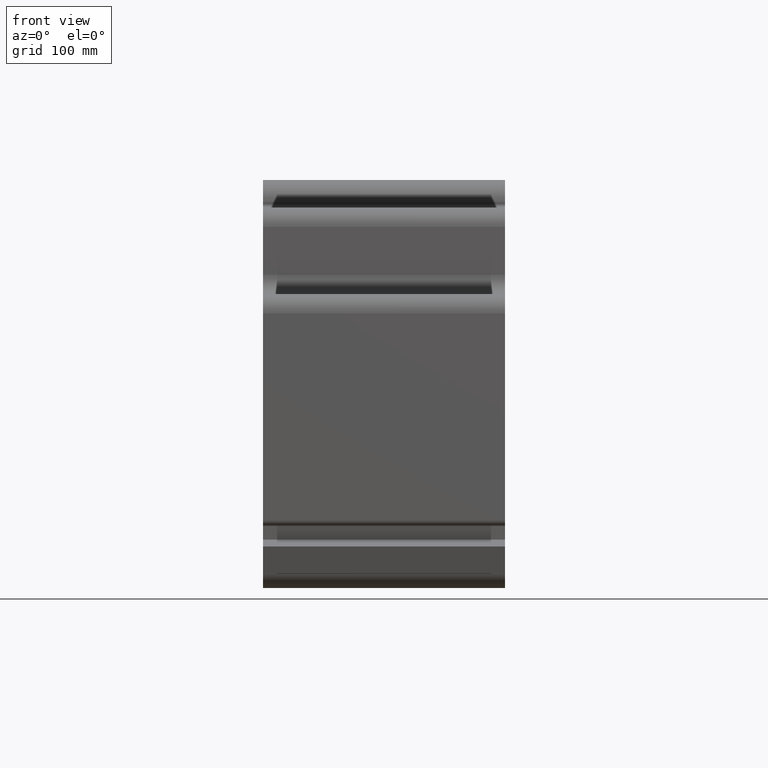
[diagram: clean part render]
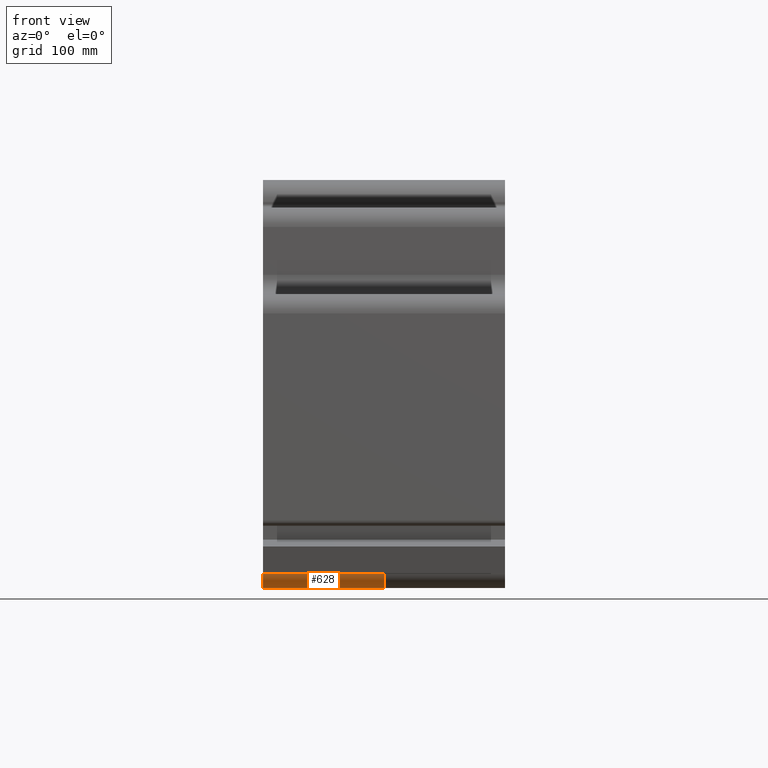
[diagram: same view with one face highlighted and labeled with its STEP entity id]
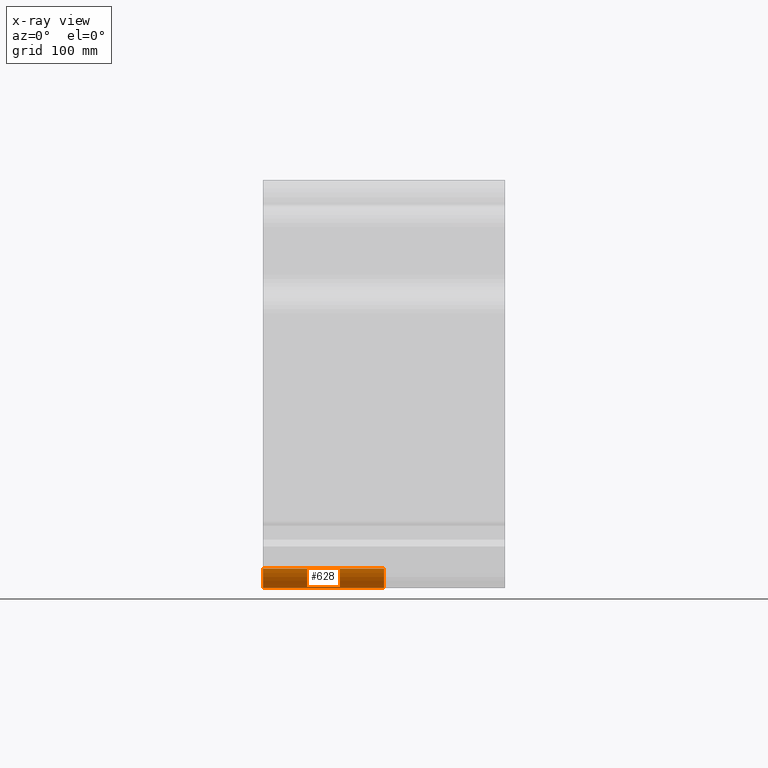
[diagram: x-ray of the same camera — body ghosted, the highlighted face saturated]
A machine part, front view. The second image highlights one B-rep face of the part: STEP entity #628.
The next image is the same camera in x-ray: the body ghosted, the highlighted face saturated — about 0% of this face is hidden behind the body in this view.
In plain terms, the highlighted cylindrical surface (edge-blend (fillet) strip) has radius 28 mm, axis along (1, 0, 0).
Its self-contained STEP definition (entity closure, byte-faithful):
#570=CARTESIAN_POINT('',(175.00000000000028,-529.19999999999982,-50.000000000000099));
#571=VERTEX_POINT('',#570);
#578=CARTESIAN_POINT('',(0.0,-529.19999999999982,-50.000000000000099));
#579=VERTEX_POINT('',#578);
#580=CARTESIAN_POINT('',(0.0,-529.19999999999982,-50.000000000000099));
#581=DIRECTION('',(1.0,0.0,0.0));
#582=VECTOR('',#581,175.00000000000028);
#583=LINE('',#580,#582);
#584=EDGE_CURVE('',#579,#571,#583,.T.);
#596=CARTESIAN_POINT('',(0.0,-529.19999999999982,-21.999999999999972));
#597=DIRECTION('',(1.0,0.0,0.0));
#598=DIRECTION('',(0.0,-0.707106781186546,-0.707106781186549));
#599=AXIS2_PLACEMENT_3D('',#596,#597,#598);
#600=CYLINDRICAL_SURFACE('',#599,28.000000000000124);
#601=CARTESIAN_POINT('',(175.00000000000028,-557.20000000000005,-22.000000000000028));
#602=VERTEX_POINT('',#601);
#603=CARTESIAN_POINT('',(175.00000000000028,-529.19999999999982,-21.999999999999972));
#604=DIRECTION('',(-1.0,0.0,0.0));
#605=DIRECTION('',(0.0,-0.707106781186546,-0.707106781186549));
#606=AXIS2_PLACEMENT_3D('',#603,#604,#605);
#607=CIRCLE('',#606,28.000000000000124);
#608=EDGE_CURVE('',#571,#602,#607,.T.);
#609=ORIENTED_EDGE('',*,*,#608,.T.);
#610=CARTESIAN_POINT('',(0.0,-557.20000000000005,-22.000000000000028));
#611=VERTEX_POINT('',#610);
#612=CARTESIAN_POINT('',(0.0,-557.20000000000005,-22.000000000000028));
#613=DIRECTION('',(1.0,0.0,0.0));
#614=VECTOR('',#613,175.00000000000028);
#615=LINE('',#612,#614);
#616=EDGE_CURVE('',#611,#602,#615,.T.);
#617=ORIENTED_EDGE('',*,*,#616,.F.);
#618=CARTESIAN_POINT('',(0.0,-529.19999999999982,-21.999999999999972));
#619=DIRECTION('',(-1.0,0.0,0.0));
#620=DIRECTION('',(0.0,-0.707106781186546,-0.707106781186549));
#621=AXIS2_PLACEMENT_3D('',#618,#619,#620);
#622=CIRCLE('',#621,28.000000000000124);
#623=EDGE_CURVE('',#579,#611,#622,.T.);
#624=ORIENTED_EDGE('',*,*,#623,.F.);
#625=ORIENTED_EDGE('',*,*,#584,.T.);
#626=EDGE_LOOP('',(#609,#617,#624,#625));
#627=FACE_OUTER_BOUND('',#626,.T.);
#628=ADVANCED_FACE('',(#627),#600,.T.);